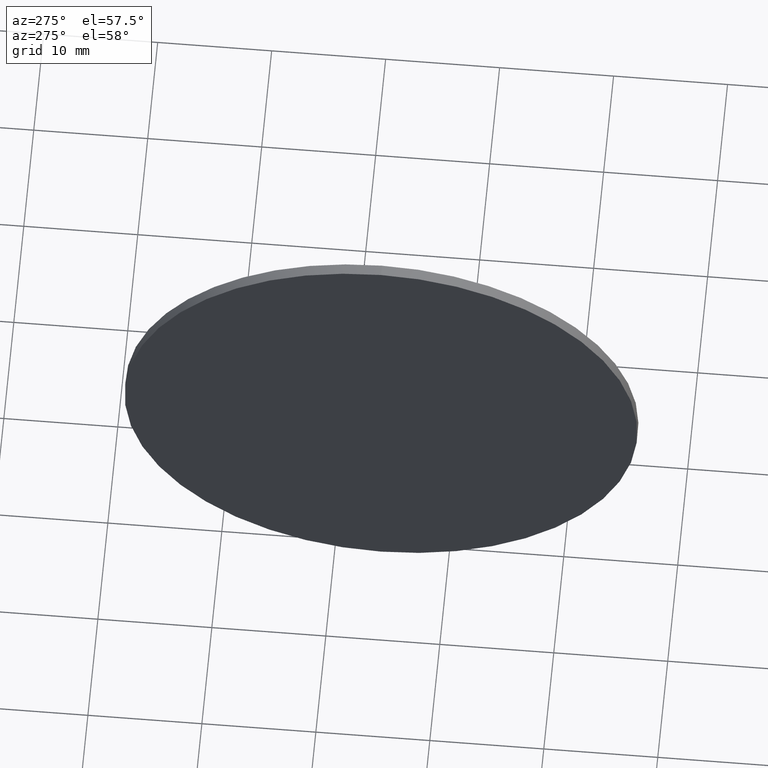
[diagram: clean part render]
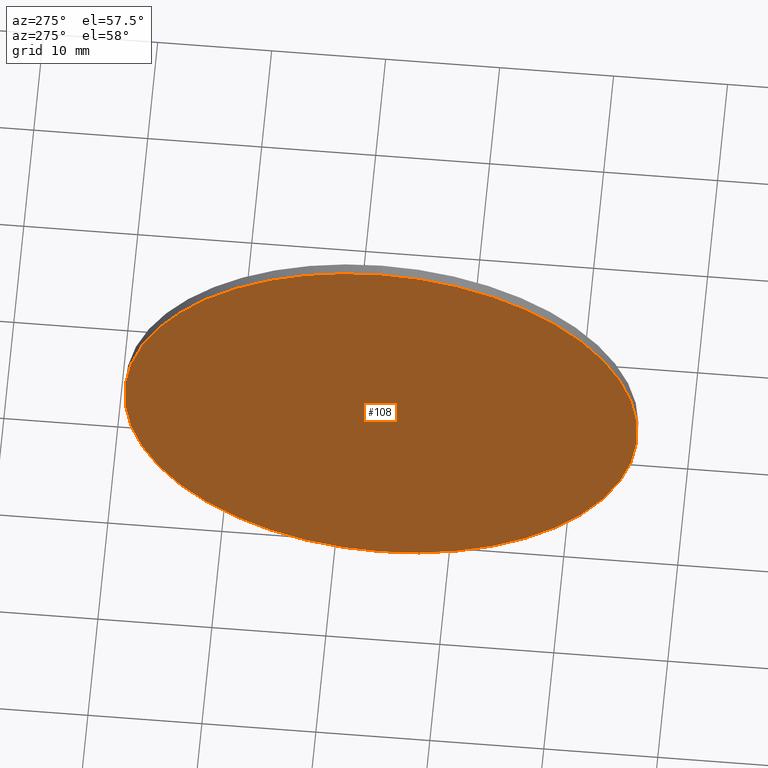
[diagram: same view with one face highlighted and labeled with its STEP entity id]
A machine part, auxiliary view. The second image highlights one B-rep face of the part: STEP entity #108.
In plain terms, the highlighted planar face has unit normal (1, 0, 0).
Its self-contained STEP definition (entity closure, byte-faithful):
#2 = CARTESIAN_POINT ( 'NONE',  ( 548.5191482803511500, 55.90797584289919100, 0.0000000000000000000 ) ) ;
#7 = CARTESIAN_POINT ( 'NONE',  ( 548.5191482803511500, 55.90797584289919100, 22.49999999999999300 ) ) ;
#13 = CIRCLE ( 'NONE', #134, 22.49999999999999300 ) ;
#24 = DIRECTION ( 'NONE',  ( 1.000000000000000000, 0.0000000000000000000, 0.0000000000000000000 ) ) ;
#27 = AXIS2_PLACEMENT_3D ( 'NONE', #91, #24, #131 ) ;
#36 = CARTESIAN_POINT ( 'NONE',  ( 548.5191482803511500, 55.90797584289919100, -22.49999999999999300 ) ) ;
#37 = DIRECTION ( 'NONE',  ( -1.000000000000000000, -0.0000000000000000000, -0.0000000000000000000 ) ) ;
#39 = CARTESIAN_POINT ( 'NONE',  ( 548.5191482803511500, 55.90797584289919100, 0.0000000000000000000 ) ) ;
#60 = ORIENTED_EDGE ( 'NONE', *, *, #73, .T. ) ;
#71 = VERTEX_POINT ( 'NONE', #36 ) ;
#73 = EDGE_CURVE ( 'NONE', #166, #71, #87, .T. ) ;
#74 = AXIS2_PLACEMENT_3D ( 'NONE', #2, #139, #168 ) ;
#79 = PLANE ( 'NONE',  #27 ) ;
#87 = CIRCLE ( 'NONE', #74, 22.49999999999999300 ) ;
#91 = CARTESIAN_POINT ( 'NONE',  ( 548.5191482803511500, 55.90797584289919100, 0.0000000000000000000 ) ) ;
#108 = ADVANCED_FACE ( 'NONE', ( #161 ), #79, .F. ) ;
#126 = EDGE_CURVE ( 'NONE', #71, #166, #13, .T. ) ;
#131 = DIRECTION ( 'NONE',  ( 0.0000000000000000000, 0.0000000000000000000, -1.000000000000000000 ) ) ;
#134 = AXIS2_PLACEMENT_3D ( 'NONE', #39, #37, #176 ) ;
#139 = DIRECTION ( 'NONE',  ( -1.000000000000000000, -0.0000000000000000000, -0.0000000000000000000 ) ) ;
#161 = FACE_OUTER_BOUND ( 'NONE', #173, .T. ) ;
#166 = VERTEX_POINT ( 'NONE', #7 ) ;
#168 = DIRECTION ( 'NONE',  ( 0.0000000000000000000, 0.0000000000000000000, 1.000000000000000000 ) ) ;
#173 = EDGE_LOOP ( 'NONE', ( #60, #174 ) ) ;
#174 = ORIENTED_EDGE ( 'NONE', *, *, #126, .T. ) ;
#176 = DIRECTION ( 'NONE',  ( 0.0000000000000000000, 0.0000000000000000000, 1.000000000000000000 ) ) ;